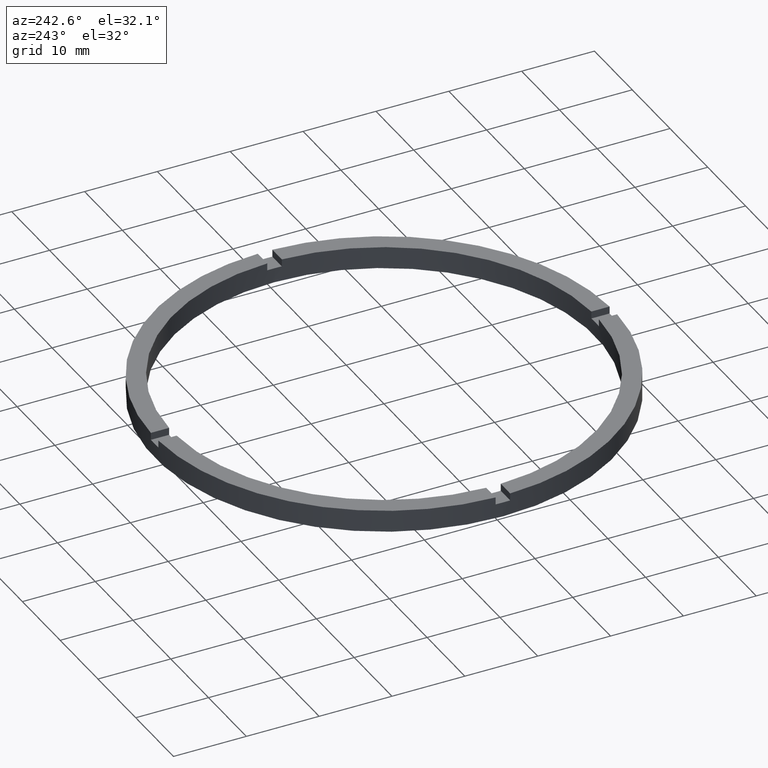
[diagram: clean part render]
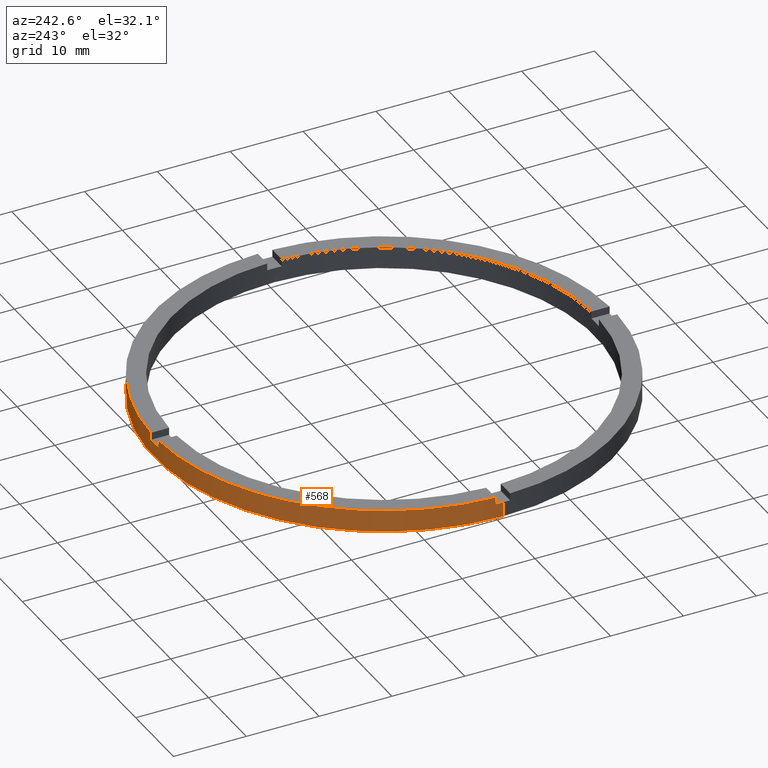
[diagram: same view with one face highlighted and labeled with its STEP entity id]
A machine part, auxiliary view. The second image highlights one B-rep face of the part: STEP entity #568.
In plain terms, the highlighted cylindrical surface (partial cylindrical patch) has radius 31.5 mm, axis along (-0, -0, -1).
Its self-contained STEP definition (entity closure, byte-faithful):
#4 = ORIENTED_EDGE ( 'NONE', *, *, #500, .T. ) ;
#6 = VERTEX_POINT ( 'NONE', #61 ) ;
#8 = EDGE_CURVE ( 'NONE', #171, #774, #434, .T. ) ;
#9 = CARTESIAN_POINT ( 'NONE',  ( -31.48412298286233124, 0.9999999999999742428, 3.000000000000000000 ) ) ;
#21 = DIRECTION ( 'NONE',  ( 1.000000000000000000, 0.000000000000000000, 0.000000000000000000 ) ) ;
#27 = DIRECTION ( 'NONE',  ( 1.000000000000000000, 0.000000000000000000, 0.000000000000000000 ) ) ;
#30 = CARTESIAN_POINT ( 'NONE',  ( 31.50000000000000000, 3.857637417314162689E-15, 3.000000000000000000 ) ) ;
#36 = VERTEX_POINT ( 'NONE', #423 ) ;
#50 = EDGE_CURVE ( 'NONE', #540, #774, #198, .T. ) ;
#54 = CARTESIAN_POINT ( 'NONE',  ( 0.000000000000000000, 0.000000000000000000, 0.000000000000000000 ) ) ;
#58 = CARTESIAN_POINT ( 'NONE',  ( 31.48412298286233479, 0.9999999999998414602, 2.000000000000000000 ) ) ;
#61 = CARTESIAN_POINT ( 'NONE',  ( 31.50000000000000000, 3.857637417314162689E-15, 2.000000000000000000 ) ) ;
#65 = AXIS2_PLACEMENT_3D ( 'NONE', #509, #76, #27 ) ;
#66 = CARTESIAN_POINT ( 'NONE',  ( -1.000000000000024425, 31.48412298286233124, 3.000000000000000000 ) ) ;
#67 = DIRECTION ( 'NONE',  ( 0.000000000000000000, -0.000000000000000000, 1.000000000000000000 ) ) ;
#69 = CARTESIAN_POINT ( 'NONE',  ( -31.48412298286233124, 0.9999999999999742428, 3.000000000000000000 ) ) ;
#76 = DIRECTION ( 'NONE',  ( 0.000000000000000000, 0.000000000000000000, 1.000000000000000000 ) ) ;
#80 = AXIS2_PLACEMENT_3D ( 'NONE', #603, #760, #334 ) ;
#83 = CARTESIAN_POINT ( 'NONE',  ( 31.48412298286233479, 0.9999999999998414602, 3.000000000000000000 ) ) ;
#115 = CARTESIAN_POINT ( 'NONE',  ( -31.48412298286233124, 0.9999999999999742428, 2.000000000000000000 ) ) ;
#116 = EDGE_CURVE ( 'NONE', #187, #700, #353, .T. ) ;
#127 = EDGE_CURVE ( 'NONE', #699, #612, #349, .T. ) ;
#160 = VECTOR ( 'NONE', #507, 1000.000000000000000 ) ;
#169 = ORIENTED_EDGE ( 'NONE', *, *, #8, .T. ) ;
#171 = VERTEX_POINT ( 'NONE', #66 ) ;
#176 = VERTEX_POINT ( 'NONE', #248 ) ;
#177 = CARTESIAN_POINT ( 'NONE',  ( -31.50000000000000000, 0.000000000000000000, 3.000000000000000000 ) ) ;
#178 = LINE ( 'NONE', #664, #675 ) ;
#184 = VECTOR ( 'NONE', #734, 1000.000000000000000 ) ;
#185 = ORIENTED_EDGE ( 'NONE', *, *, #541, .T. ) ;
#187 = VERTEX_POINT ( 'NONE', #115 ) ;
#191 = AXIS2_PLACEMENT_3D ( 'NONE', #403, #542, #585 ) ;
#198 = CIRCLE ( 'NONE', #416, 31.50000000000000000 ) ;
#216 = ORIENTED_EDGE ( 'NONE', *, *, #722, .T. ) ;
#218 = CARTESIAN_POINT ( 'NONE',  ( 0.000000000000000000, 0.000000000000000000, 3.000000000000000000 ) ) ;
#224 = CARTESIAN_POINT ( 'NONE',  ( -31.50000000000000000, 0.000000000000000000, 2.000000000000000000 ) ) ;
#234 = AXIS2_PLACEMENT_3D ( 'NONE', #218, #318, #750 ) ;
#236 = CARTESIAN_POINT ( 'NONE',  ( -1.000000000000024425, 31.48412298286233124, 2.000000000000000000 ) ) ;
#242 = EDGE_CURVE ( 'NONE', #6, #383, #707, .T. ) ;
#248 = CARTESIAN_POINT ( 'NONE',  ( 31.50000000000000000, 3.857637417314162689E-15, 0.000000000000000000 ) ) ;
#276 = CARTESIAN_POINT ( 'NONE',  ( 31.48412298286233479, 0.9999999999998414602, 3.000000000000000000 ) ) ;
#293 = EDGE_CURVE ( 'NONE', #679, #36, #506, .T. ) ;
#302 = CARTESIAN_POINT ( 'NONE',  ( -1.000000000000024425, 31.48412298286233124, 3.000000000000000000 ) ) ;
#304 = ORIENTED_EDGE ( 'NONE', *, *, #127, .F. ) ;
#310 = ORIENTED_EDGE ( 'NONE', *, *, #242, .F. ) ;
#312 = DIRECTION ( 'NONE',  ( 1.000000000000000000, 0.000000000000000000, 0.000000000000000000 ) ) ;
#318 = DIRECTION ( 'NONE',  ( 0.000000000000000000, 0.000000000000000000, 1.000000000000000000 ) ) ;
#319 = CARTESIAN_POINT ( 'NONE',  ( 0.9999999999999754641, 31.48412298286233124, 2.000000000000000000 ) ) ;
#321 = EDGE_CURVE ( 'NONE', #187, #699, #692, .T. ) ;
#334 = DIRECTION ( 'NONE',  ( -1.000000000000000000, 0.000000000000000000, 0.000000000000000000 ) ) ;
#338 = DIRECTION ( 'NONE',  ( 1.000000000000000000, 0.000000000000000000, 0.000000000000000000 ) ) ;
#347 = VECTOR ( 'NONE', #539, 1000.000000000000000 ) ;
#349 = LINE ( 'NONE', #177, #740 ) ;
#353 = LINE ( 'NONE', #9, #347 ) ;
#354 = CARTESIAN_POINT ( 'NONE',  ( 0.000000000000000000, 0.000000000000000000, 2.000000000000000000 ) ) ;
#362 = EDGE_LOOP ( 'NONE', ( #310, #4, #216, #304, #427, #725, #435, #169, #693, #185, #733, #516 ) ) ;
#383 = VERTEX_POINT ( 'NONE', #58 ) ;
#397 = FACE_OUTER_BOUND ( 'NONE', #362, .T. ) ;
#400 = CYLINDRICAL_SURFACE ( 'NONE', #80, 31.50000000000000000 ) ;
#403 = CARTESIAN_POINT ( 'NONE',  ( 0.000000000000000000, 0.000000000000000000, 2.000000000000000000 ) ) ;
#408 = CIRCLE ( 'NONE', #234, 31.50000000000000000 ) ;
#416 = AXIS2_PLACEMENT_3D ( 'NONE', #497, #67, #21 ) ;
#423 = CARTESIAN_POINT ( 'NONE',  ( 0.9999999999999754641, 31.48412298286233124, 3.000000000000000000 ) ) ;
#425 = LINE ( 'NONE', #276, #160 ) ;
#426 = DIRECTION ( 'NONE',  ( 0.000000000000000000, 0.000000000000000000, 1.000000000000000000 ) ) ;
#427 = ORIENTED_EDGE ( 'NONE', *, *, #321, .F. ) ;
#434 = LINE ( 'NONE', #302, #184 ) ;
#435 = ORIENTED_EDGE ( 'NONE', *, *, #674, .F. ) ;
#439 = LINE ( 'NONE', #30, #672 ) ;
#491 = DIRECTION ( 'NONE',  ( -0.000000000000000000, -0.000000000000000000, -1.000000000000000000 ) ) ;
#497 = CARTESIAN_POINT ( 'NONE',  ( 0.000000000000000000, 0.000000000000000000, 2.000000000000000000 ) ) ;
#500 = EDGE_CURVE ( 'NONE', #6, #176, #439, .T. ) ;
#506 = CIRCLE ( 'NONE', #65, 31.50000000000000000 ) ;
#507 = DIRECTION ( 'NONE',  ( -0.000000000000000000, -0.000000000000000000, -1.000000000000000000 ) ) ;
#509 = CARTESIAN_POINT ( 'NONE',  ( 0.000000000000000000, 0.000000000000000000, 3.000000000000000000 ) ) ;
#516 = ORIENTED_EDGE ( 'NONE', *, *, #523, .T. ) ;
#523 = EDGE_CURVE ( 'NONE', #679, #383, #425, .T. ) ;
#539 = DIRECTION ( 'NONE',  ( 0.000000000000000000, 0.000000000000000000, 1.000000000000000000 ) ) ;
#540 = VERTEX_POINT ( 'NONE', #319 ) ;
#541 = EDGE_CURVE ( 'NONE', #540, #36, #178, .T. ) ;
#542 = DIRECTION ( 'NONE',  ( 0.000000000000000000, 0.000000000000000000, 1.000000000000000000 ) ) ;
#568 = ADVANCED_FACE ( 'NONE', ( #397 ), #400, .T. ) ;
#572 = DIRECTION ( 'NONE',  ( 0.000000000000000000, 0.000000000000000000, 1.000000000000000000 ) ) ;
#577 = DIRECTION ( 'NONE',  ( -0.000000000000000000, -0.000000000000000000, -1.000000000000000000 ) ) ;
#585 = DIRECTION ( 'NONE',  ( 1.000000000000000000, 0.000000000000000000, 0.000000000000000000 ) ) ;
#597 = AXIS2_PLACEMENT_3D ( 'NONE', #54, #622, #338 ) ;
#603 = CARTESIAN_POINT ( 'NONE',  ( 0.000000000000000000, 0.000000000000000000, 3.000000000000000000 ) ) ;
#612 = VERTEX_POINT ( 'NONE', #663 ) ;
#622 = DIRECTION ( 'NONE',  ( 0.000000000000000000, 0.000000000000000000, 1.000000000000000000 ) ) ;
#663 = CARTESIAN_POINT ( 'NONE',  ( -31.50000000000000000, 0.000000000000000000, 0.000000000000000000 ) ) ;
#664 = CARTESIAN_POINT ( 'NONE',  ( 0.9999999999999754641, 31.48412298286233124, 3.000000000000000000 ) ) ;
#667 = CIRCLE ( 'NONE', #597, 31.50000000000000000 ) ;
#672 = VECTOR ( 'NONE', #577, 1000.000000000000000 ) ;
#674 = EDGE_CURVE ( 'NONE', #171, #700, #408, .T. ) ;
#675 = VECTOR ( 'NONE', #572, 1000.000000000000000 ) ;
#679 = VERTEX_POINT ( 'NONE', #83 ) ;
#692 = CIRCLE ( 'NONE', #191, 31.50000000000000000 ) ;
#693 = ORIENTED_EDGE ( 'NONE', *, *, #50, .F. ) ;
#699 = VERTEX_POINT ( 'NONE', #224 ) ;
#700 = VERTEX_POINT ( 'NONE', #69 ) ;
#707 = CIRCLE ( 'NONE', #757, 31.50000000000000000 ) ;
#722 = EDGE_CURVE ( 'NONE', #176, #612, #667, .T. ) ;
#725 = ORIENTED_EDGE ( 'NONE', *, *, #116, .T. ) ;
#733 = ORIENTED_EDGE ( 'NONE', *, *, #293, .F. ) ;
#734 = DIRECTION ( 'NONE',  ( -0.000000000000000000, -0.000000000000000000, -1.000000000000000000 ) ) ;
#740 = VECTOR ( 'NONE', #491, 1000.000000000000000 ) ;
#750 = DIRECTION ( 'NONE',  ( 1.000000000000000000, 0.000000000000000000, 0.000000000000000000 ) ) ;
#757 = AXIS2_PLACEMENT_3D ( 'NONE', #354, #426, #312 ) ;
#760 = DIRECTION ( 'NONE',  ( -0.000000000000000000, -0.000000000000000000, -1.000000000000000000 ) ) ;
#774 = VERTEX_POINT ( 'NONE', #236 ) ;